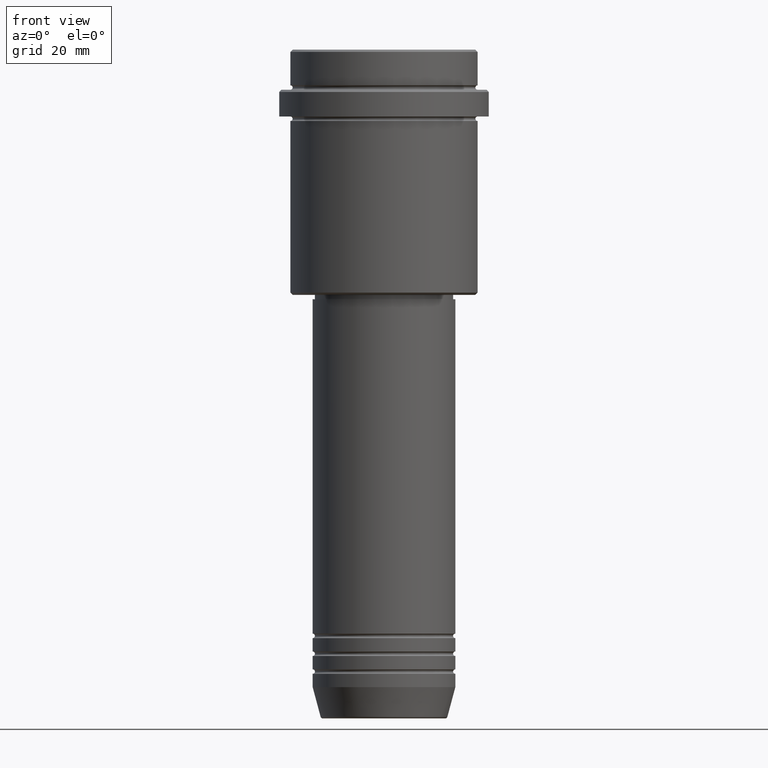
[diagram: clean part render]
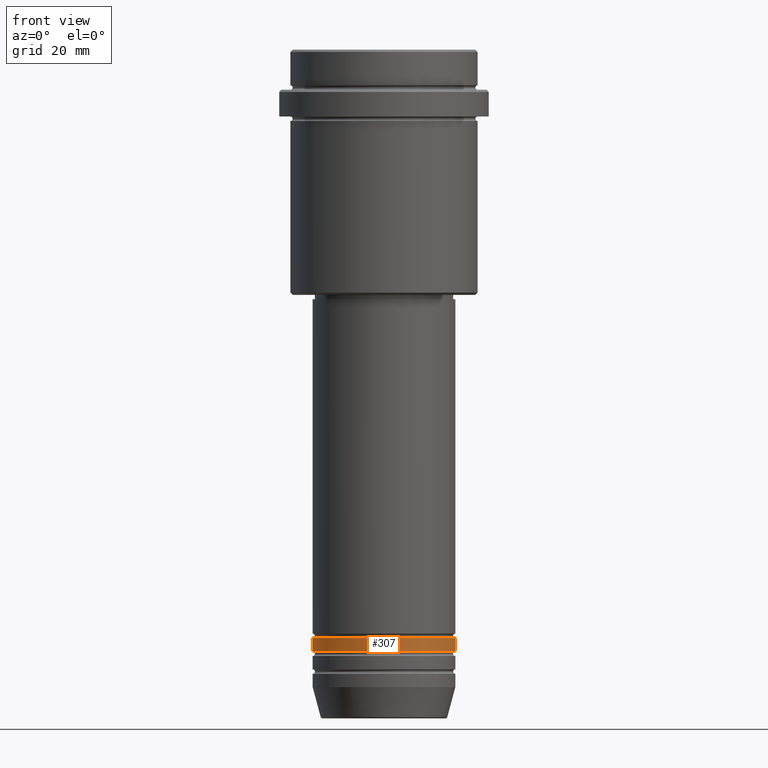
[diagram: same view with one face highlighted and labeled with its STEP entity id]
A machine part, front view. The second image highlights one B-rep face of the part: STEP entity #307.
In plain terms, the highlighted cylindrical surface (partial cylindrical patch) has radius 16 mm, axis along (-0, -0, 1).
Its self-contained STEP definition (entity closure, byte-faithful):
#16 = CARTESIAN_POINT ( 'NONE',  ( 0.000000000000000000, 0.000000000000000000, -134.9999999999998579 ) ) ;
#22 = CARTESIAN_POINT ( 'NONE',  ( -16.00000000000000000, 1.959434878635765131E-15, -134.9999999999998579 ) ) ;
#71 = ORIENTED_EDGE ( 'NONE', *, *, #178, .T. ) ;
#72 = VERTEX_POINT ( 'NONE', #1080 ) ;
#78 = VERTEX_POINT ( 'NONE', #407 ) ;
#178 = EDGE_CURVE ( 'NONE', #223, #78, #759, .T. ) ;
#223 = VERTEX_POINT ( 'NONE', #22 ) ;
#282 = CARTESIAN_POINT ( 'NONE',  ( 0.000000000000000000, 0.000000000000000000, 0.000000000000000000 ) ) ;
#302 = LINE ( 'NONE', #1183, #626 ) ;
#307 = ADVANCED_FACE ( 'NONE', ( #488 ), #1250, .T. ) ;
#345 = CARTESIAN_POINT ( 'NONE',  ( -16.00000000000000000, 1.959434878635765131E-15, -131.9999999999998579 ) ) ;
#395 = ORIENTED_EDGE ( 'NONE', *, *, #1143, .F. ) ;
#407 = CARTESIAN_POINT ( 'NONE',  ( 16.00000000000000000, 0.000000000000000000, -134.9999999999998579 ) ) ;
#414 = CARTESIAN_POINT ( 'NONE',  ( 16.00000000000000000, 0.000000000000000000, 0.000000000000000000 ) ) ;
#444 = DIRECTION ( 'NONE',  ( -0.000000000000000000, -0.000000000000000000, 1.000000000000000000 ) ) ;
#452 = CARTESIAN_POINT ( 'NONE',  ( 0.000000000000000000, 0.000000000000000000, -131.9999999999998579 ) ) ;
#480 = ORIENTED_EDGE ( 'NONE', *, *, #846, .F. ) ;
#488 = FACE_OUTER_BOUND ( 'NONE', #767, .T. ) ;
#553 = DIRECTION ( 'NONE',  ( 1.000000000000000000, 0.000000000000000000, 0.000000000000000000 ) ) ;
#626 = VECTOR ( 'NONE', #758, 1000.000000000000000 ) ;
#634 = CIRCLE ( 'NONE', #889, 16.00000000000000000 ) ;
#651 = DIRECTION ( 'NONE',  ( -0.000000000000000000, -0.000000000000000000, 1.000000000000000000 ) ) ;
#714 = AXIS2_PLACEMENT_3D ( 'NONE', #282, #1242, #1035 ) ;
#758 = DIRECTION ( 'NONE',  ( -0.000000000000000000, -0.000000000000000000, 1.000000000000000000 ) ) ;
#759 = CIRCLE ( 'NONE', #1173, 16.00000000000000000 ) ;
#767 = EDGE_LOOP ( 'NONE', ( #480, #71, #1092, #395 ) ) ;
#846 = EDGE_CURVE ( 'NONE', #223, #1383, #302, .T. ) ;
#889 = AXIS2_PLACEMENT_3D ( 'NONE', #452, #1416, #1295 ) ;
#1035 = DIRECTION ( 'NONE',  ( 1.000000000000000000, 0.000000000000000000, 0.000000000000000000 ) ) ;
#1080 = CARTESIAN_POINT ( 'NONE',  ( 16.00000000000000000, 0.000000000000000000, -131.9999999999998579 ) ) ;
#1092 = ORIENTED_EDGE ( 'NONE', *, *, #1326, .T. ) ;
#1095 = VECTOR ( 'NONE', #651, 1000.000000000000000 ) ;
#1143 = EDGE_CURVE ( 'NONE', #1383, #72, #634, .T. ) ;
#1173 = AXIS2_PLACEMENT_3D ( 'NONE', #16, #444, #553 ) ;
#1183 = CARTESIAN_POINT ( 'NONE',  ( -16.00000000000000000, 1.959434878635765131E-15, 0.000000000000000000 ) ) ;
#1202 = LINE ( 'NONE', #414, #1095 ) ;
#1242 = DIRECTION ( 'NONE',  ( -0.000000000000000000, -0.000000000000000000, 1.000000000000000000 ) ) ;
#1250 = CYLINDRICAL_SURFACE ( 'NONE', #714, 16.00000000000000000 ) ;
#1295 = DIRECTION ( 'NONE',  ( 1.000000000000000000, 0.000000000000000000, 0.000000000000000000 ) ) ;
#1326 = EDGE_CURVE ( 'NONE', #78, #72, #1202, .T. ) ;
#1383 = VERTEX_POINT ( 'NONE', #345 ) ;
#1416 = DIRECTION ( 'NONE',  ( -0.000000000000000000, -0.000000000000000000, 1.000000000000000000 ) ) ;